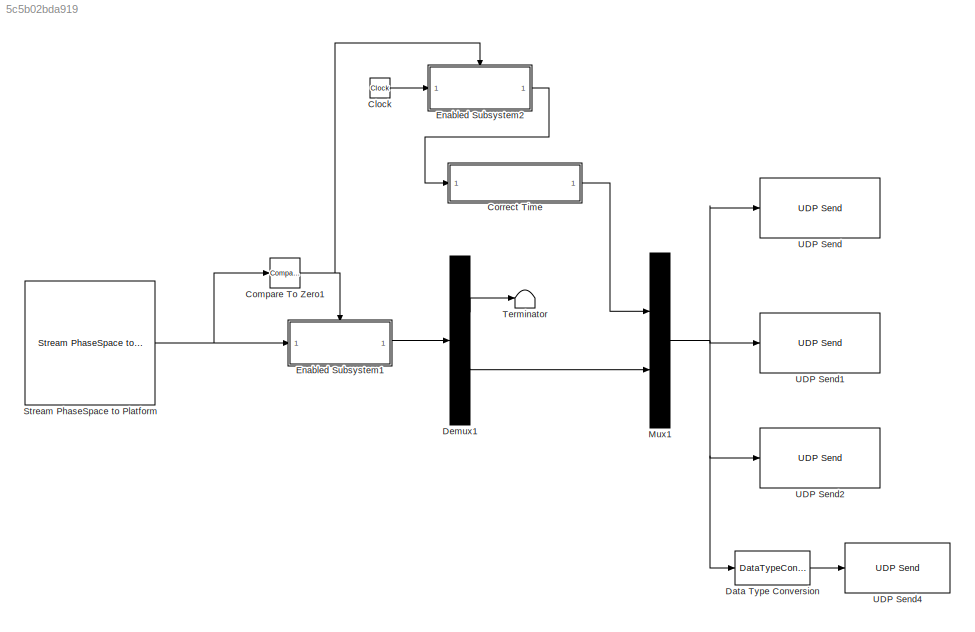
MODEL slx_5c5b02bda919
KIND model
CONFIG AbsTol = auto
CONFIG EnableMultiTasking = on
CONFIG FixedStep = 0.1
CONFIG MaxStep = auto
CONFIG MinStep = auto
CONFIG RelTol = 1e-3
CONFIG SampleTimeConstraint = Unconstrained
CONFIG Solver = FixedStepAuto
CONFIG SolverName = FixedStepAuto
CONFIG StartTime = 0.0
CONFIG StopTime = inf
BLOCK [Clock] Clock
BLOCK [Reference] Compare To Zero1  REF=simulink/Logic and Bit
Operations/Compare
To Zero
  Ports = [1, 1]
  SourceBlock = simulink/Logic and Bit\nOperations/Compare\nTo Zero
  SourceProductBaseCode = SL
  SourceType = Compare To Zero
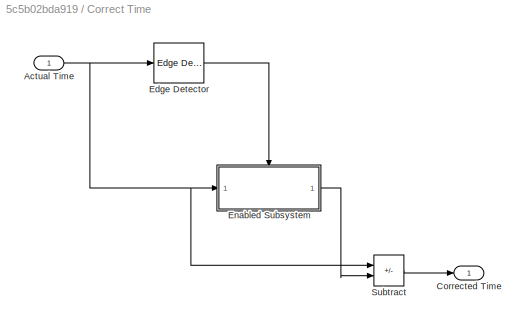
BLOCK [SubSystem] Correct Time
  Ports = [1, 1]
  RequestExecContextInheritance = off
BLOCK [Inport] Correct Time/Actual Time
BLOCK [Outport] Correct Time/Corrected Time
  VectorParamsAs1DForOutWhenUnconnected = off
BLOCK [Reference] Correct Time/Edge Detector  REF=dspswit3/Edge
Detector
  Ports = [1, 1]
  SourceBlock = dspswit3/Edge\nDetector
  SourceProductBaseCode = DS
  SourceType = Edge Detector
  UserDataPersistent = on
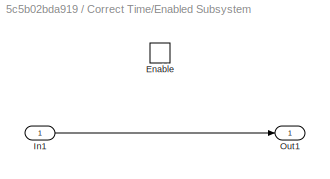
BLOCK [SubSystem] Correct Time/Enabled Subsystem
  Ports = [1, 1, 1]
  RequestExecContextInheritance = off
  TreatAsAtomicUnit = on
BLOCK [EnablePort] Correct Time/Enabled Subsystem/Enable
  Ports = []
BLOCK [Inport] Correct Time/Enabled Subsystem/In1
BLOCK [Outport] Correct Time/Enabled Subsystem/Out1
  VectorParamsAs1DForOutWhenUnconnected = off
BLOCK [Sum] Correct Time/Subtract
  IconShape = rectangular
  Inputs = +-
  Ports = [2, 1]
BLOCK [DataTypeConversion] Data Type Conversion
  OutDataTypeStr = double
  RndMeth = Floor
  SaturateOnIntegerOverflow = off
BLOCK [Demux] Demux1
  Outputs = [1,15]
  Ports = [1, 2]
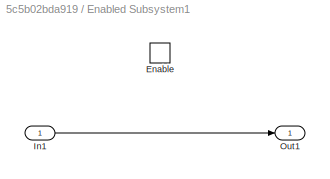
BLOCK [SubSystem] Enabled Subsystem1
  Ports = [1, 1, 1]
  RequestExecContextInheritance = off
  TreatAsAtomicUnit = on
BLOCK [EnablePort] Enabled Subsystem1/Enable
  Ports = []
BLOCK [Inport] Enabled Subsystem1/In1
BLOCK [Outport] Enabled Subsystem1/Out1
  VectorParamsAs1DForOutWhenUnconnected = off
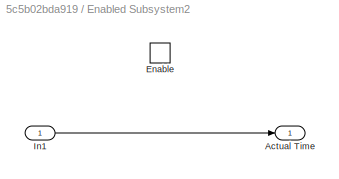
BLOCK [SubSystem] Enabled Subsystem2
  Ports = [1, 1, 1]
  RequestExecContextInheritance = off
  TreatAsAtomicUnit = on
BLOCK [Outport] Enabled Subsystem2/Actual Time
  VectorParamsAs1DForOutWhenUnconnected = off
BLOCK [EnablePort] Enabled Subsystem2/Enable
  Ports = []
BLOCK [Inport] Enabled Subsystem2/In1
BLOCK [Mux] Mux1
  DisplayOption = bar
  Inputs = 2
  Ports = [2, 1]
BLOCK [Reference] Stream PhaseSpace to Platform  REF=MainLibrary/PhaseSpace Functions/Stream PhaseSpace to Platform
  Ports = [0, 1]
  SourceBlock = MainLibrary/PhaseSpace Functions/Stream PhaseSpace to Platform
  SourceProductName = SPOT Custom Library
  SourceType = PhaseSpace_ALL
BLOCK [Terminator] Terminator
BLOCK [Reference] UDP Send  REF=embdlinuxlib/UDP Send
  Ports = [1]
  SourceBlock = embdlinuxlib/UDP Send
  SourceProductBaseCode = SC_BEAGLEBONE_BLUE,RASPPI
  SourceType = UDP Send
BLOCK [Reference] UDP Send1  REF=embdlinuxlib/UDP Send
  Ports = [1]
  SourceBlock = embdlinuxlib/UDP Send
  SourceProductBaseCode = SC_BEAGLEBONE_BLUE,RASPPI
  SourceType = UDP Send
BLOCK [Reference] UDP Send2  REF=embdlinuxlib/UDP Send
  Ports = [1]
  SourceBlock = embdlinuxlib/UDP Send
  SourceProductBaseCode = SC_BEAGLEBONE_BLUE,RASPPI
  SourceType = UDP Send
BLOCK [Reference] UDP Send4  REF=dspnetwork/UDP Send
  Ports = [1]
  SourceBlock = dspnetwork/UDP Send
  SourceProductBaseCode = SL
  SourceType = UDP Send
LINE Clock:1 -> Enabled Subsystem2:1
NET Compare To Zero1:1 -> Enabled Subsystem1:enable, Enabled Subsystem2:enable
NET Correct Time/Actual Time:1 -> Correct Time/Edge Detector:1, Correct Time/Enabled Subsystem:1, Correct Time/Subtract:1
LINE Correct Time/Edge Detector:1 -> Correct Time/Enabled Subsystem:enable
LINE Correct Time/Enabled Subsystem/In1:1 -> Correct Time/Enabled Subsystem/Out1:1
LINE Correct Time/Enabled Subsystem:1 -> Correct Time/Subtract:2
LINE Correct Time/Subtract:1 -> Correct Time/Corrected Time:1
LINE Correct Time:1 -> Mux1:1
LINE Data Type Conversion:1 -> UDP Send4:1
LINE Demux1:1 -> Terminator:1
LINE Demux1:2 -> Mux1:2
LINE Enabled Subsystem1/In1:1 -> Enabled Subsystem1/Out1:1
LINE Enabled Subsystem1:1 -> Demux1:1
LINE Enabled Subsystem2/In1:1 -> Enabled Subsystem2/Actual Time:1
LINE Enabled Subsystem2:1 -> Correct Time:1
NET Mux1:1 -> Data Type Conversion:1, UDP Send1:1, UDP Send2:1, UDP Send:1
NET Stream PhaseSpace to Platform:1 -> Compare To Zero1:1, Enabled Subsystem1:1
note: NET lines group one-source signal fan-out (src -> all destinations, sorted); 1:1 wires keep LINE
